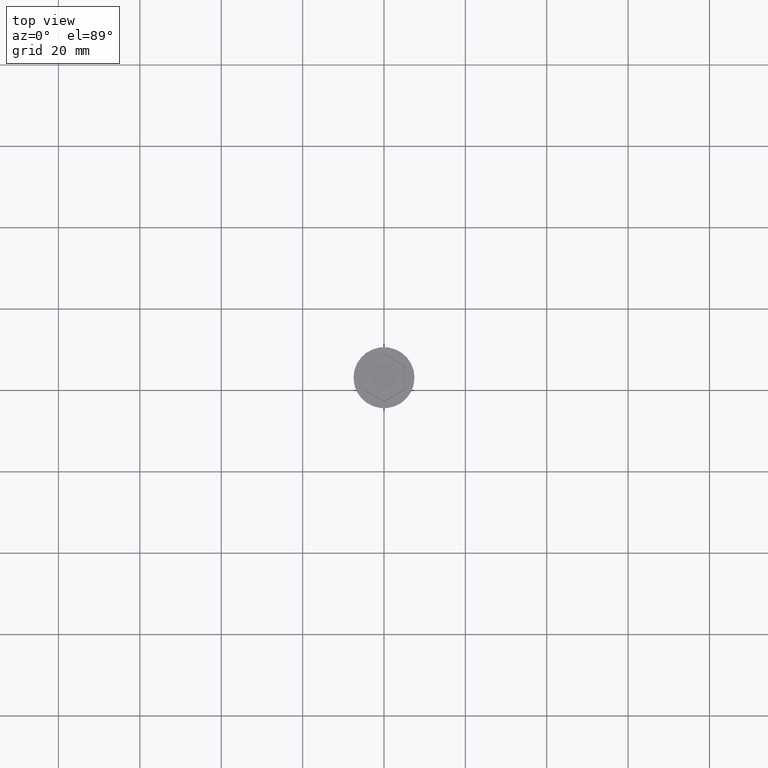
[diagram: clean part render]
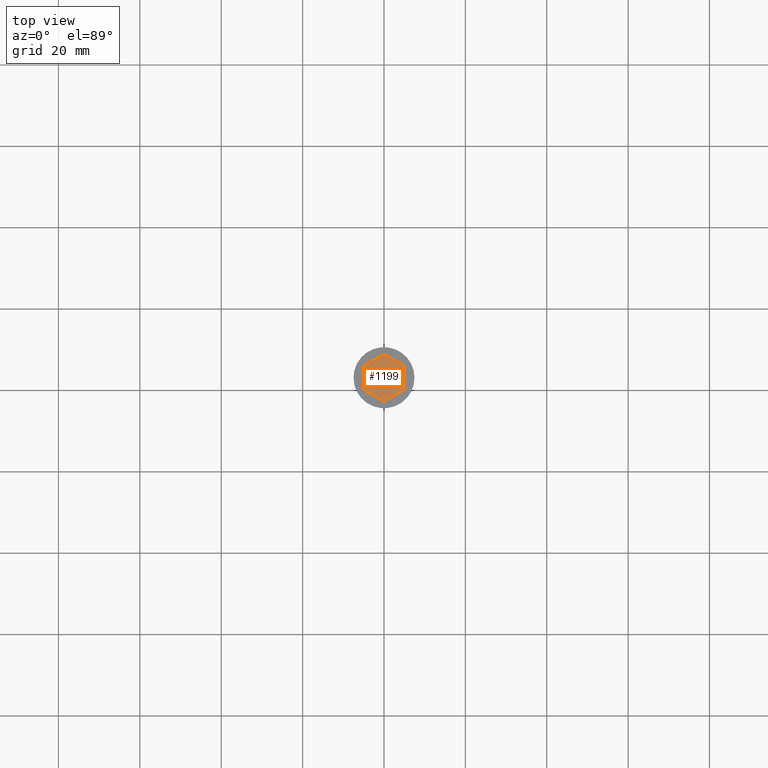
[diagram: same view with one face highlighted and labeled with its STEP entity id]
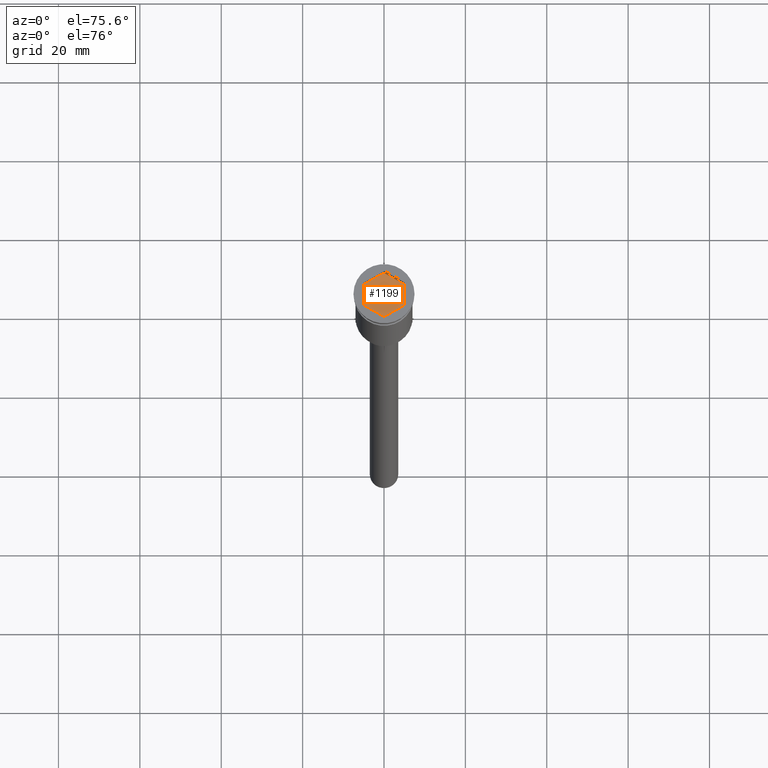
[diagram: same view with one face highlighted and labeled with its STEP entity id]
A machine part, top view. The second image highlights one B-rep face of the part: STEP entity #1199.
A second angle (auxiliary view) of the same face is appended — the face is thin or edge-on in the first view.
In plain terms, the highlighted planar face has unit normal (-0, 0, 1).
Its self-contained STEP definition (entity closure, byte-faithful):
#84 = VERTEX_POINT ( 'NONE', #431 ) ;
#116 = LINE ( 'NONE', #865, #378 ) ;
#120 = DIRECTION ( 'NONE',  ( 0.8660254037844387076, -0.4999999999999998890, 0.000000000000000000 ) ) ;
#133 = DIRECTION ( 'NONE',  ( -0.8660254037844385966, -0.4999999999999999445, 0.000000000000000000 ) ) ;
#189 = VERTEX_POINT ( 'NONE', #211 ) ;
#205 = VECTOR ( 'NONE', #120, 1000.000000000000114 ) ;
#211 = CARTESIAN_POINT ( 'NONE',  ( 8.673617379884035472E-16, -5.773502691896257311, -2.000000000000000000 ) ) ;
#248 = CARTESIAN_POINT ( 'NONE',  ( 4.999999999999999112, 2.886751345948129543, -2.000000000000000000 ) ) ;
#312 = EDGE_CURVE ( 'NONE', #910, #1416, #1121, .T. ) ;
#350 = VECTOR ( 'NONE', #1020, 1000.000000000000000 ) ;
#378 = VECTOR ( 'NONE', #608, 1000.000000000000227 ) ;
#431 = CARTESIAN_POINT ( 'NONE',  ( -4.999999999999999112, -2.886751345948129543, -2.000000000000000000 ) ) ;
#441 = CARTESIAN_POINT ( 'NONE',  ( 0.000000000000000000, 5.773502691896255534, -2.000000000000000000 ) ) ;
#472 = ORIENTED_EDGE ( 'NONE', *, *, #804, .T. ) ;
#510 = CARTESIAN_POINT ( 'NONE',  ( 4.999999999999999112, 0.000000000000000000, -2.000000000000000000 ) ) ;
#567 = EDGE_LOOP ( 'NONE', ( #1364, #828, #976, #786, #1467, #472 ) ) ;
#588 = LINE ( 'NONE', #735, #205 ) ;
#599 = VERTEX_POINT ( 'NONE', #1000 ) ;
#608 = DIRECTION ( 'NONE',  ( 0.8660254037844385966, 0.4999999999999998890, 0.000000000000000000 ) ) ;
#719 = FACE_OUTER_BOUND ( 'NONE', #567, .T. ) ;
#735 = CARTESIAN_POINT ( 'NONE',  ( -2.499999999999999112, -4.330127018922193649, -2.000000000000000000 ) ) ;
#748 = LINE ( 'NONE', #1241, #960 ) ;
#786 = ORIENTED_EDGE ( 'NONE', *, *, #1515, .T. ) ;
#804 = EDGE_CURVE ( 'NONE', #1149, #910, #1134, .T. ) ;
#822 = DIRECTION ( 'NONE',  ( 0.000000000000000000, -1.000000000000000000, 0.000000000000000000 ) ) ;
#828 = ORIENTED_EDGE ( 'NONE', *, *, #994, .T. ) ;
#855 = CARTESIAN_POINT ( 'NONE',  ( 0.000000000000000000, 0.000000000000000000, -2.000000000000000000 ) ) ;
#865 = CARTESIAN_POINT ( 'NONE',  ( 2.499999999999999556, -4.330127018922193649, -2.000000000000000000 ) ) ;
#877 = VECTOR ( 'NONE', #888, 1000.000000000000114 ) ;
#880 = CARTESIAN_POINT ( 'NONE',  ( 2.499999999999997780, 4.330127018922194537, -2.000000000000000000 ) ) ;
#888 = DIRECTION ( 'NONE',  ( -0.8660254037844388186, 0.4999999999999996114, 0.000000000000000000 ) ) ;
#891 = EDGE_CURVE ( 'NONE', #189, #1149, #116, .T. ) ;
#910 = VERTEX_POINT ( 'NONE', #248 ) ;
#941 = CARTESIAN_POINT ( 'NONE',  ( 4.999999999999999112, -2.886751345948129543, -2.000000000000000000 ) ) ;
#960 = VECTOR ( 'NONE', #133, 1000.000000000000114 ) ;
#976 = ORIENTED_EDGE ( 'NONE', *, *, #1362, .T. ) ;
#994 = EDGE_CURVE ( 'NONE', #1416, #599, #748, .T. ) ;
#1000 = CARTESIAN_POINT ( 'NONE',  ( -4.999999999999999112, 2.886751345948128655, -2.000000000000000000 ) ) ;
#1020 = DIRECTION ( 'NONE',  ( 0.000000000000000000, 1.000000000000000000, -0.000000000000000000 ) ) ;
#1121 = LINE ( 'NONE', #880, #877 ) ;
#1134 = LINE ( 'NONE', #510, #350 ) ;
#1149 = VERTEX_POINT ( 'NONE', #941 ) ;
#1167 = LINE ( 'NONE', #1305, #1404 ) ;
#1199 = ADVANCED_FACE ( 'NONE', ( #719 ), #1213, .T. ) ;
#1213 = PLANE ( 'NONE',  #1265 ) ;
#1241 = CARTESIAN_POINT ( 'NONE',  ( -2.499999999999999112, 4.330127018922192761, -2.000000000000000000 ) ) ;
#1265 = AXIS2_PLACEMENT_3D ( 'NONE', #855, #1348, #1587 ) ;
#1305 = CARTESIAN_POINT ( 'NONE',  ( -4.999999999999999112, 0.000000000000000000, -2.000000000000000000 ) ) ;
#1348 = DIRECTION ( 'NONE',  ( -0.000000000000000000, 0.000000000000000000, 1.000000000000000000 ) ) ;
#1362 = EDGE_CURVE ( 'NONE', #599, #84, #1167, .T. ) ;
#1364 = ORIENTED_EDGE ( 'NONE', *, *, #312, .T. ) ;
#1404 = VECTOR ( 'NONE', #822, 1000.000000000000000 ) ;
#1416 = VERTEX_POINT ( 'NONE', #441 ) ;
#1467 = ORIENTED_EDGE ( 'NONE', *, *, #891, .T. ) ;
#1515 = EDGE_CURVE ( 'NONE', #84, #189, #588, .T. ) ;
#1587 = DIRECTION ( 'NONE',  ( 1.000000000000000000, 0.000000000000000000, 0.000000000000000000 ) ) ;